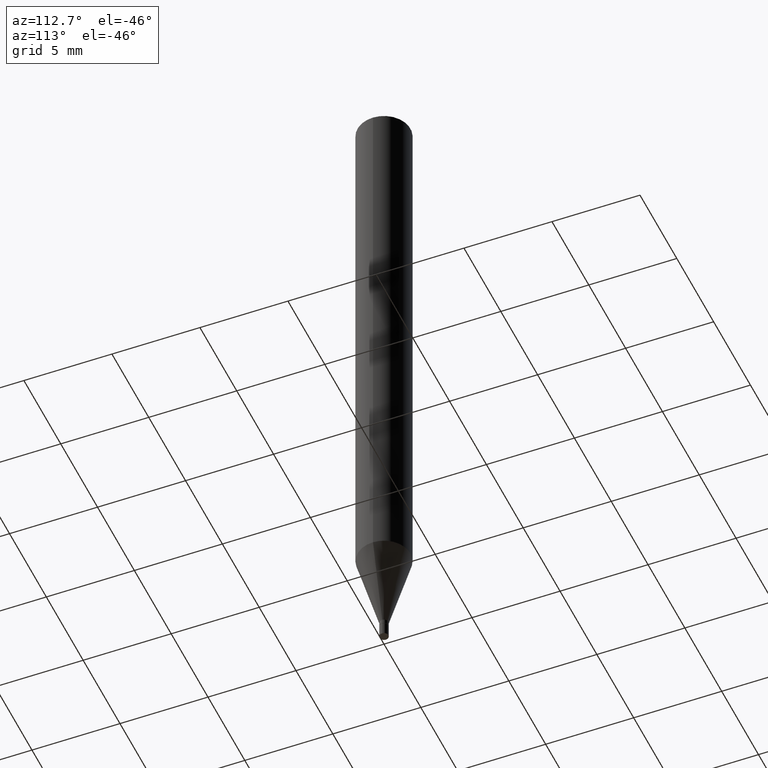
[diagram: clean part render]
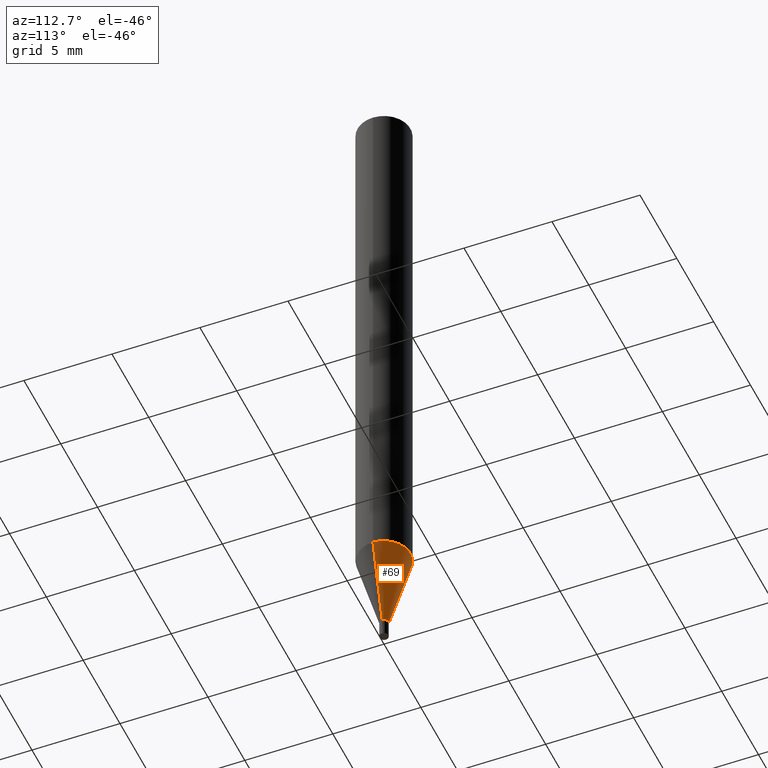
[diagram: same view with one face highlighted and labeled with its STEP entity id]
A machine part, auxiliary view. The second image highlights one B-rep face of the part: STEP entity #69.
In plain terms, the highlighted conical surface has half-angle 15 deg.
Its self-contained STEP definition (entity closure, byte-faithful):
#25 = CONICAL_SURFACE ( 'NONE', #275, 0.009849999999999924788, 0.2617993877991505181 ) ;
#27 = ORIENTED_EDGE ( 'NONE', *, *, #143, .F. ) ;
#31 = CIRCLE ( 'NONE', #295, 0.009849999999999924788 ) ;
#43 = EDGE_CURVE ( 'NONE', #157, #329, #170, .T. ) ;
#68 = DIRECTION ( 'NONE',  ( 0.2588190451025217942, 1.565188264969618812E-15, 0.9659258262890679791 ) ) ;
#69 = ADVANCED_FACE ( 'NONE', ( #433 ), #25, .T. ) ;
#78 = LINE ( 'NONE', #174, #87 ) ;
#87 = VECTOR ( 'NONE', #355, 39.37007874015748143 ) ;
#91 = DIRECTION ( 'NONE',  ( 1.000000000000000000, -6.982962677686273021E-15, 0.000000000000000000 ) ) ;
#98 = EDGE_CURVE ( 'NONE', #191, #432, #78, .T. ) ;
#124 = DIRECTION ( 'NONE',  ( -2.445468806185136597E-29, 3.491481338843145583E-15, 1.000000000000000000 ) ) ;
#143 = EDGE_CURVE ( 'NONE', #329, #432, #285, .T. ) ;
#157 = VERTEX_POINT ( 'NONE', #443 ) ;
#160 = CARTESIAN_POINT ( 'NONE',  ( 3.570384457030299835E-29, -5.097562754710993158E-15, -1.459999999999999964 ) ) ;
#165 = ORIENTED_EDGE ( 'NONE', *, *, #274, .T. ) ;
#170 = LINE ( 'NONE', #463, #234 ) ;
#174 = CARTESIAN_POINT ( 'NONE',  ( -0.009849999999999924788, -5.027574295238623898E-15, -1.459999999999999964 ) ) ;
#181 = DIRECTION ( 'NONE',  ( 1.000000000000000000, -6.982962677686282488E-15, 0.000000000000000000 ) ) ;
#191 = VERTEX_POINT ( 'NONE', #269 ) ;
#197 = DIRECTION ( 'NONE',  ( -2.445468806185136597E-29, 3.491481338843145583E-15, 1.000000000000000000 ) ) ;
#201 = AXIS2_PLACEMENT_3D ( 'NONE', #444, #124, #91 ) ;
#234 = VECTOR ( 'NONE', #68, 39.37007874015748143 ) ;
#252 = CARTESIAN_POINT ( 'NONE',  ( 3.570384457030299835E-29, -5.097562754710993158E-15, -1.459999999999999964 ) ) ;
#264 = DIRECTION ( 'NONE',  ( 1.000000000000000000, -6.982962677686282488E-15, 0.000000000000000000 ) ) ;
#269 = CARTESIAN_POINT ( 'NONE',  ( -0.009849999999999924788, -4.532233292785705389E-15, -1.459999999999999964 ) ) ;
#270 = CARTESIAN_POINT ( 'NONE',  ( 0.05904999999999999138, -4.868811721916501294E-15, -1.276383100267611814 ) ) ;
#274 = EDGE_CURVE ( 'NONE', #157, #191, #31, .T. ) ;
#275 = AXIS2_PLACEMENT_3D ( 'NONE', #252, #354, #181 ) ;
#285 = CIRCLE ( 'NONE', #201, 0.05904999999999999832 ) ;
#295 = AXIS2_PLACEMENT_3D ( 'NONE', #160, #197, #264 ) ;
#329 = VERTEX_POINT ( 'NONE', #270 ) ;
#354 = DIRECTION ( 'NONE',  ( -2.445468806185136597E-29, 3.491481338843145583E-15, 1.000000000000000000 ) ) ;
#355 = DIRECTION ( 'NONE',  ( -0.2588190451025217942, 5.211531920934552619E-15, 0.9659258262890679791 ) ) ;
#360 = ORIENTED_EDGE ( 'NONE', *, *, #98, .T. ) ;
#425 = CARTESIAN_POINT ( 'NONE',  ( -0.05904999999999999138, -4.036892290332787669E-15, -1.276383100267611814 ) ) ;
#432 = VERTEX_POINT ( 'NONE', #425 ) ;
#433 = FACE_OUTER_BOUND ( 'NONE', #462, .T. ) ;
#439 = ORIENTED_EDGE ( 'NONE', *, *, #43, .F. ) ;
#443 = CARTESIAN_POINT ( 'NONE',  ( 0.009849999999999924788, -5.166344937086201976E-15, -1.459999999999999964 ) ) ;
#444 = CARTESIAN_POINT ( 'NONE',  ( 3.121355056446320430E-29, -4.456467775799125585E-15, -1.276383100267611814 ) ) ;
#462 = EDGE_LOOP ( 'NONE', ( #165, #360, #27, #439 ) ) ;
#463 = CARTESIAN_POINT ( 'NONE',  ( 0.009849999999999924788, -5.166344937086201976E-15, -1.459999999999999964 ) ) ;